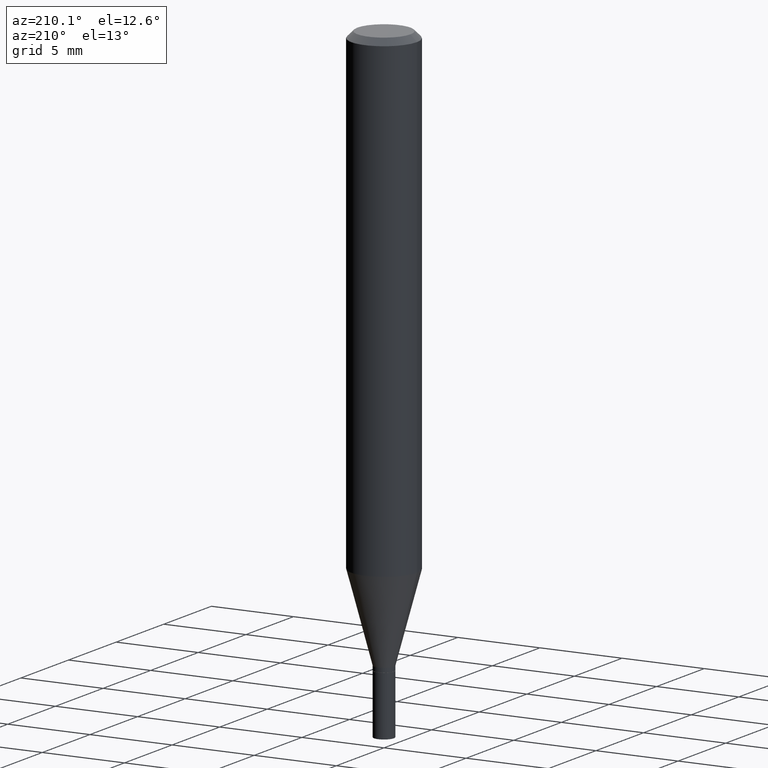
[diagram: clean part render]
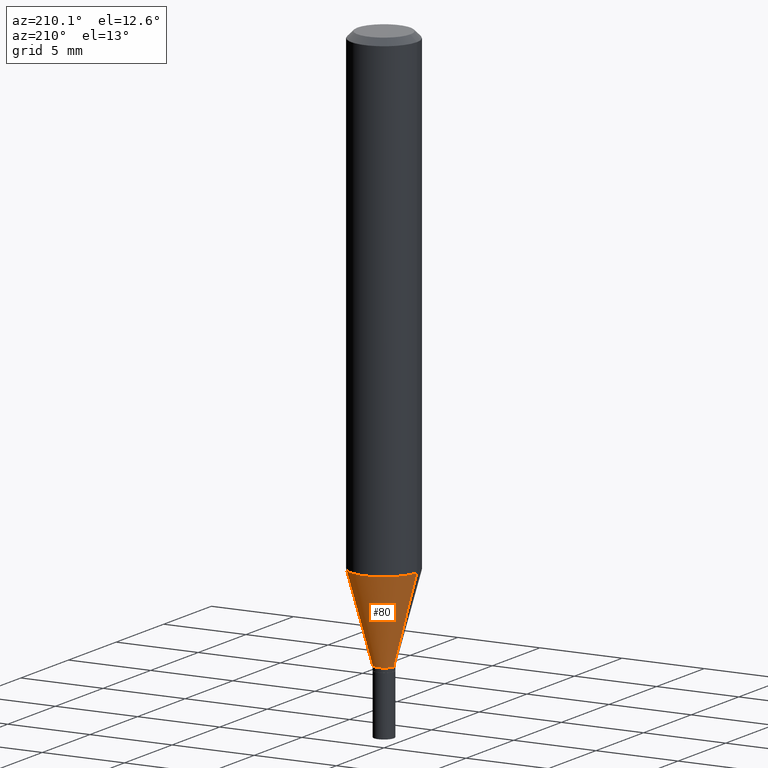
[diagram: same view with one face highlighted and labeled with its STEP entity id]
A machine part, auxiliary view. The second image highlights one B-rep face of the part: STEP entity #80.
In plain terms, the highlighted conical surface has half-angle 15 deg.
Its self-contained STEP definition (entity closure, byte-faithful):
#3 = CARTESIAN_POINT ( 'NONE',  ( -0.07875000000000000056, -3.428338666223679315E-15, -1.142177397962576890 ) ) ;
#4 = EDGE_CURVE ( 'NONE', #78, #345, #380, .T. ) ;
#5 = DIRECTION ( 'NONE',  ( 1.000000000000000000, -6.982962677686268288E-15, 0.000000000000000000 ) ) ;
#16 = AXIS2_PLACEMENT_3D ( 'NONE', #327, #79, #218 ) ;
#17 = FACE_OUTER_BOUND ( 'NONE', #137, .T. ) ;
#25 = AXIS2_PLACEMENT_3D ( 'NONE', #115, #155, #5 ) ;
#43 = EDGE_CURVE ( 'NONE', #381, #78, #152, .T. ) ;
#44 = CARTESIAN_POINT ( 'NONE',  ( 3.296491950737564433E-29, -4.706516844760561370E-15, -1.348000000000000309 ) ) ;
#78 = VERTEX_POINT ( 'NONE', #401 ) ;
#79 = DIRECTION ( 'NONE',  ( -2.445468806185136597E-29, 3.491481338843145583E-15, 1.000000000000000000 ) ) ;
#80 = ADVANCED_FACE ( 'NONE', ( #17 ), #156, .T. ) ;
#81 = DIRECTION ( 'NONE',  ( -2.445468806185136597E-29, 3.491481338843145583E-15, 1.000000000000000000 ) ) ;
#115 = CARTESIAN_POINT ( 'NONE',  ( 2.793159197847188577E-29, -3.987891070634758511E-15, -1.142177397962576890 ) ) ;
#137 = EDGE_LOOP ( 'NONE', ( #178, #157, #204, #324 ) ) ;
#152 = LINE ( 'NONE', #446, #167 ) ;
#155 = DIRECTION ( 'NONE',  ( -2.445468806185136597E-29, 3.491481338843145583E-15, 1.000000000000000000 ) ) ;
#156 = CONICAL_SURFACE ( 'NONE', #441, 0.02359999999999993006, 0.2617993877991500740 ) ;
#157 = ORIENTED_EDGE ( 'NONE', *, *, #344, .T. ) ;
#167 = VECTOR ( 'NONE', #437, 39.37007874015747433 ) ;
#178 = ORIENTED_EDGE ( 'NONE', *, *, #431, .T. ) ;
#185 = CARTESIAN_POINT ( 'NONE',  ( 0.02359999999999993006, -4.871314763953956829E-15, -1.348000000000000309 ) ) ;
#204 = ORIENTED_EDGE ( 'NONE', *, *, #4, .F. ) ;
#216 = CARTESIAN_POINT ( 'NONE',  ( -0.02359999999999993006, -4.538828759121177262E-15, -1.348000000000000309 ) ) ;
#218 = DIRECTION ( 'NONE',  ( 1.000000000000000000, -6.982962677686279332E-15, 0.000000000000000000 ) ) ;
#220 = DIRECTION ( 'NONE',  ( 1.000000000000000000, -6.982962677686279332E-15, 0.000000000000000000 ) ) ;
#243 = LINE ( 'NONE', #216, #365 ) ;
#248 = DIRECTION ( 'NONE',  ( -0.2588190451025213501, 5.211531920934551042E-15, 0.9659258262890682012 ) ) ;
#324 = ORIENTED_EDGE ( 'NONE', *, *, #43, .F. ) ;
#327 = CARTESIAN_POINT ( 'NONE',  ( 3.296491950737564433E-29, -4.706516844760561370E-15, -1.348000000000000309 ) ) ;
#344 = EDGE_CURVE ( 'NONE', #392, #345, #243, .T. ) ;
#345 = VERTEX_POINT ( 'NONE', #3 ) ;
#365 = VECTOR ( 'NONE', #248, 39.37007874015747433 ) ;
#366 = CIRCLE ( 'NONE', #16, 0.02359999999999993006 ) ;
#380 = CIRCLE ( 'NONE', #25, 0.07875000000000000056 ) ;
#381 = VERTEX_POINT ( 'NONE', #185 ) ;
#392 = VERTEX_POINT ( 'NONE', #393 ) ;
#393 = CARTESIAN_POINT ( 'NONE',  ( -0.02359999999999993006, -3.983583712672428880E-15, -1.348000000000000309 ) ) ;
#401 = CARTESIAN_POINT ( 'NONE',  ( 0.07875000000000000056, -4.537799381502551857E-15, -1.142177397962576890 ) ) ;
#431 = EDGE_CURVE ( 'NONE', #381, #392, #366, .T. ) ;
#437 = DIRECTION ( 'NONE',  ( 0.2588190451025213501, 1.565188264969621968E-15, 0.9659258262890682012 ) ) ;
#441 = AXIS2_PLACEMENT_3D ( 'NONE', #44, #81, #220 ) ;
#446 = CARTESIAN_POINT ( 'NONE',  ( 0.02359999999999993006, -4.871314763953956829E-15, -1.348000000000000309 ) ) ;